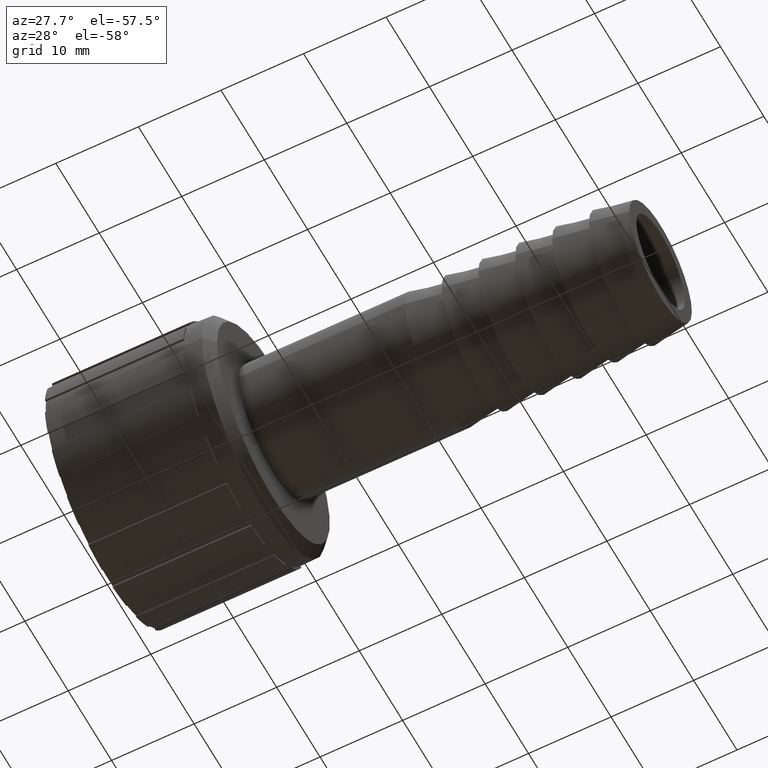
[diagram: clean part render]
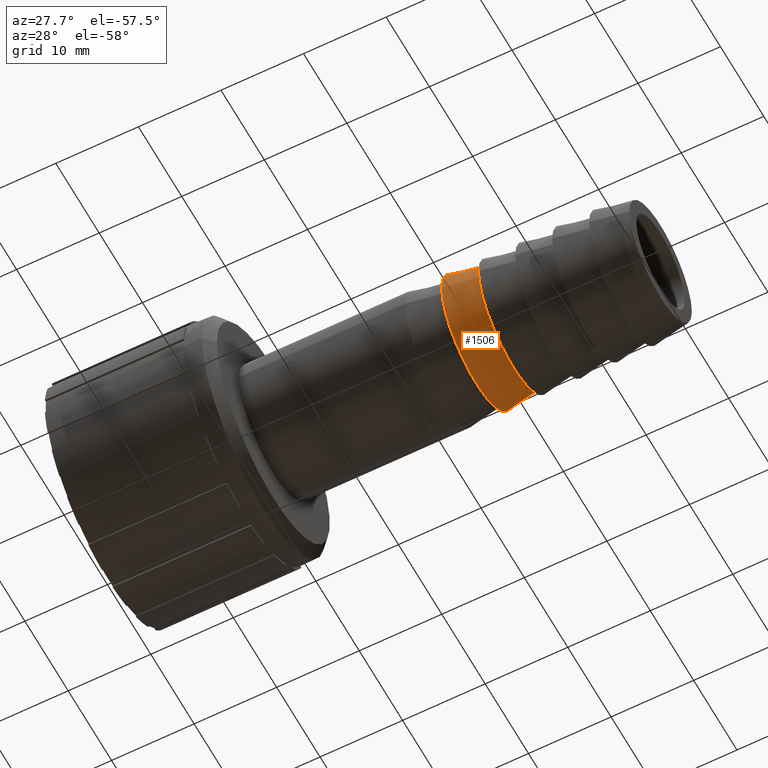
[diagram: same view with one face highlighted and labeled with its STEP entity id]
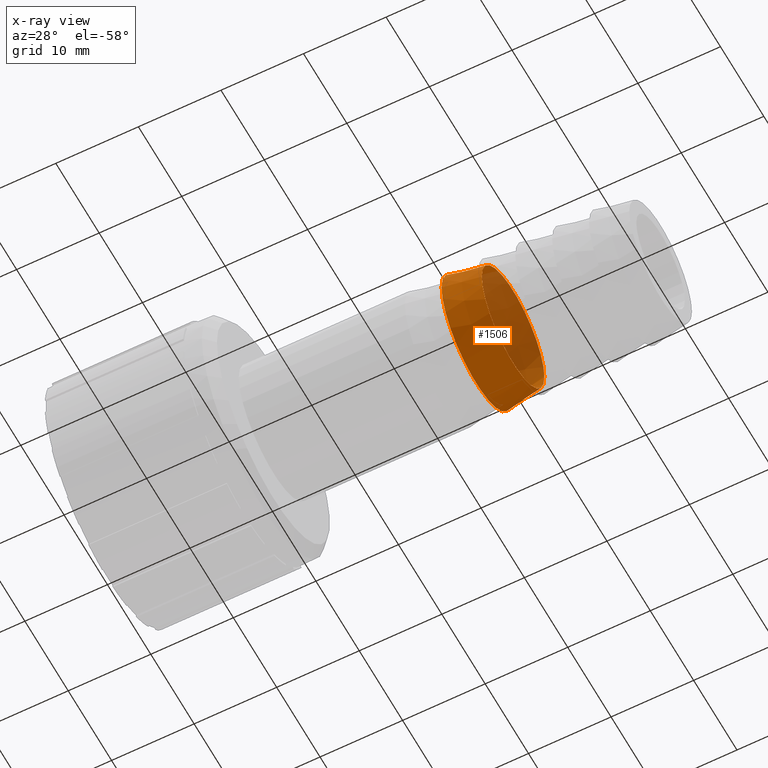
[diagram: x-ray of the same camera — body ghosted, the highlighted face saturated]
A machine part, auxiliary view. The second image highlights one B-rep face of the part: STEP entity #1506.
The next image is the same camera in x-ray: the body ghosted, the highlighted face saturated — about 35% of this face is hidden behind the body in this view.
In plain terms, the highlighted conical surface has half-angle 10 deg.
Its self-contained STEP definition (entity closure, byte-faithful):
#20=CONICAL_SURFACE('',#1672,7.60620307641777,9.99999999999995);
#58=FACE_BOUND('',#326,.T.);
#141=CIRCLE('',#1671,7.21240615283553);
#142=CIRCLE('',#1673,8.);
#225=FACE_OUTER_BOUND('',#325,.T.);
#325=EDGE_LOOP('',(#1361));
#326=EDGE_LOOP('',(#1362));
#732=VERTEX_POINT('',#2574);
#733=VERTEX_POINT('',#2577);
#943=EDGE_CURVE('',#732,#732,#141,.T.);
#944=EDGE_CURVE('',#733,#733,#142,.T.);
#1361=ORIENTED_EDGE('',*,*,#943,.T.);
#1362=ORIENTED_EDGE('',*,*,#944,.F.);
#1506=ADVANCED_FACE('',(#225,#58),#20,.T.);
#1671=AXIS2_PLACEMENT_3D('',#2575,#2127,#2128);
#1672=AXIS2_PLACEMENT_3D('',#2576,#2129,#2130);
#1673=AXIS2_PLACEMENT_3D('',#2578,#2131,#2132);
#2127=DIRECTION('center_axis',(-1.,0.,0.));
#2128=DIRECTION('ref_axis',(0.,0.,1.));
#2129=DIRECTION('center_axis',(-1.,0.,0.));
#2130=DIRECTION('ref_axis',(0.,-1.,0.));
#2131=DIRECTION('center_axis',(-1.,0.,0.));
#2132=DIRECTION('ref_axis',(0.,0.,1.));
#2574=CARTESIAN_POINT('',(49.1333333333333,-7.21240615283553,0.));
#2575=CARTESIAN_POINT('Origin',(49.1333333333333,0.,0.));
#2576=CARTESIAN_POINT('Origin',(46.8999999999999,0.,0.));
#2577=CARTESIAN_POINT('',(44.6666666666666,-8.,0.));
#2578=CARTESIAN_POINT('Origin',(44.6666666666666,0.,0.));